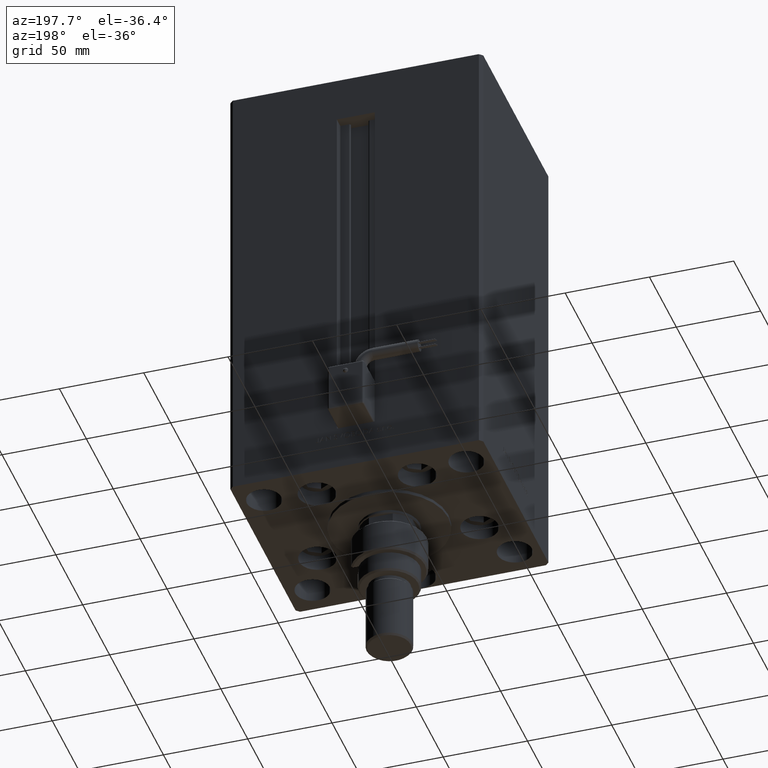
[diagram: clean part render]
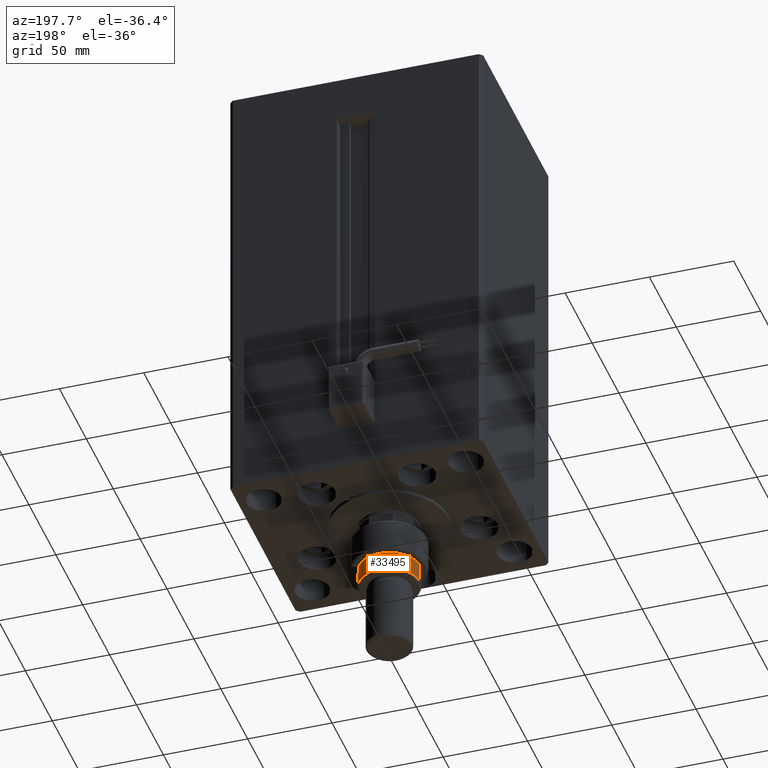
[diagram: same view with one face highlighted and labeled with its STEP entity id]
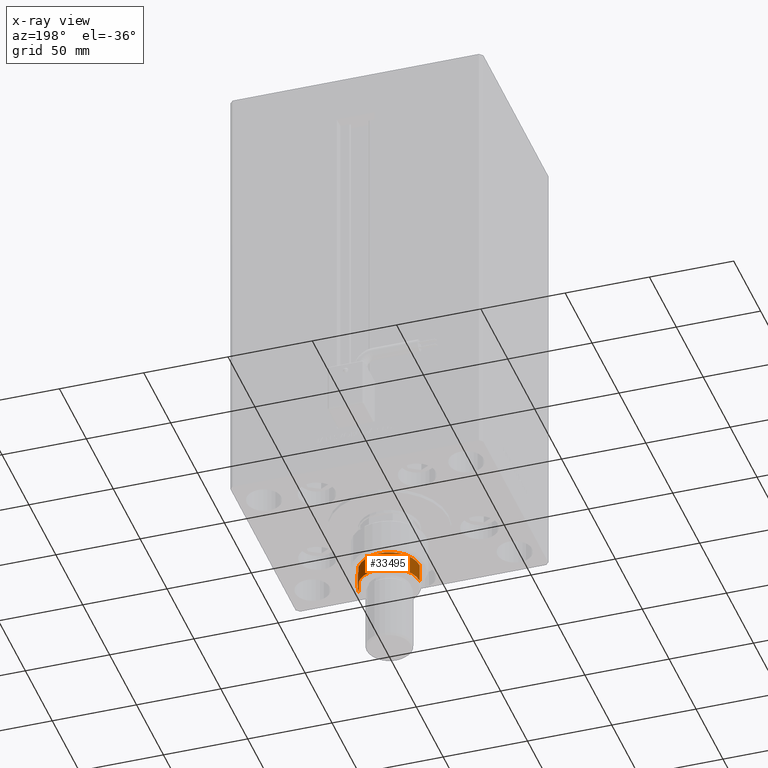
[diagram: x-ray of the same camera — body ghosted, the highlighted face saturated]
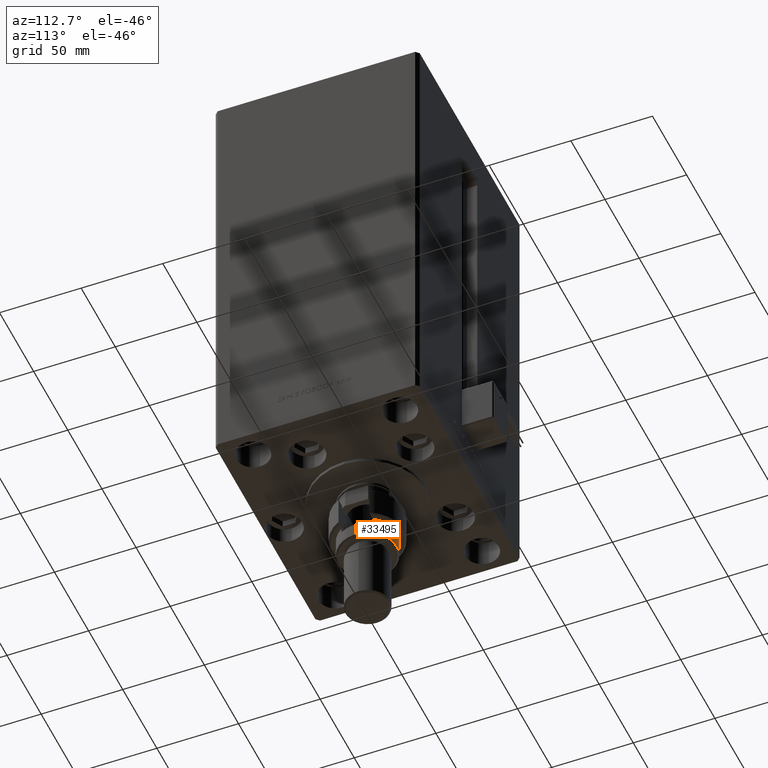
[diagram: same view with one face highlighted and labeled with its STEP entity id]
A machine part, auxiliary view. The second image highlights one B-rep face of the part: STEP entity #33495.
The next image is the same camera in x-ray: the body ghosted, the highlighted face saturated — about 0% of this face is hidden behind the body in this view.
A second angle (auxiliary view) of the same face is appended — the face is thin or edge-on in the first view.
In plain terms, the highlighted cylindrical surface (edge-blend (fillet) strip) has radius 18 mm, axis along (0, -0, 1).
Its self-contained STEP definition (entity closure, byte-faithful):
#139 = CARTESIAN_POINT ( 'NONE',  ( 0.000000000000000000, 0.000000000000000000, 30.99999999999999645 ) ) ;
#3191 = DIRECTION ( 'NONE',  ( -0.000000000000000000, -0.000000000000000000, -1.000000000000000000 ) ) ;
#4236 = VERTEX_POINT ( 'NONE', #10335 ) ;
#4238 = CARTESIAN_POINT ( 'NONE',  ( -18.00000000000000000, 0.000000000000000000, 23.00000000000000000 ) ) ;
#7295 = DIRECTION ( 'NONE',  ( 0.000000000000000000, 0.000000000000000000, 1.000000000000000000 ) ) ;
#8012 = CARTESIAN_POINT ( 'NONE',  ( -15.28888485142065434, 9.500000000000000000, 19.99999999999999645 ) ) ;
#8841 = AXIS2_PLACEMENT_3D ( 'NONE', #139, #45494, #20544 ) ;
#8931 = ORIENTED_EDGE ( 'NONE', *, *, #38828, .T. ) ;
#10335 = CARTESIAN_POINT ( 'NONE',  ( -15.28888485142065434, 9.500000000000000000, 23.00000000000000000 ) ) ;
#10512 = CARTESIAN_POINT ( 'NONE',  ( -15.28888485142065434, 9.500000000000000000, 32.00000000000000000 ) ) ;
#10897 = EDGE_CURVE ( 'NONE', #31676, #29994, #46839, .T. ) ;
#12817 = VECTOR ( 'NONE', #7295, 1000.000000000000000 ) ;
#14483 = CIRCLE ( 'NONE', #35924, 18.00000000000000000 ) ;
#14742 = CARTESIAN_POINT ( 'NONE',  ( 0.000000000000000000, 0.000000000000000000, 32.00000000000000000 ) ) ;
#16855 = VECTOR ( 'NONE', #25260, 1000.000000000000000 ) ;
#18022 = CARTESIAN_POINT ( 'NONE',  ( 0.000000000000000000, 0.000000000000000000, 23.00000000000000000 ) ) ;
#18755 = FACE_OUTER_BOUND ( 'NONE', #32003, .T. ) ;
#19351 = LINE ( 'NONE', #10512, #12817 ) ;
#20544 = DIRECTION ( 'NONE',  ( 1.000000000000000000, 0.000000000000000000, 0.000000000000000000 ) ) ;
#22015 = CARTESIAN_POINT ( 'NONE',  ( 18.00000000000000000, 2.204364238465235428E-15, 32.00000000000000000 ) ) ;
#22138 = DIRECTION ( 'NONE',  ( -0.000000000000000000, -0.000000000000000000, -1.000000000000000000 ) ) ;
#24142 = CIRCLE ( 'NONE', #36131, 18.00000000000000000 ) ;
#25260 = DIRECTION ( 'NONE',  ( -0.000000000000000000, -0.000000000000000000, -1.000000000000000000 ) ) ;
#25811 = EDGE_CURVE ( 'NONE', #36205, #40926, #45656, .T. ) ;
#25876 = ORIENTED_EDGE ( 'NONE', *, *, #25811, .T. ) ;
#26593 = AXIS2_PLACEMENT_3D ( 'NONE', #14742, #3191, #51781 ) ;
#27412 = ORIENTED_EDGE ( 'NONE', *, *, #45966, .F. ) ;
#29994 = VERTEX_POINT ( 'NONE', #4238 ) ;
#31538 = CARTESIAN_POINT ( 'NONE',  ( 18.00000000000000000, 2.204364238465235428E-15, 30.99999999999999645 ) ) ;
#31676 = VERTEX_POINT ( 'NONE', #46134 ) ;
#32003 = EDGE_LOOP ( 'NONE', ( #44626, #25876, #8931, #34937, #27412, #41070 ) ) ;
#32098 = CARTESIAN_POINT ( 'NONE',  ( 0.000000000000000000, 0.000000000000000000, 20.00000000000000000 ) ) ;
#32390 = EDGE_CURVE ( 'NONE', #32804, #4236, #19351, .T. ) ;
#32804 = VERTEX_POINT ( 'NONE', #8012 ) ;
#33495 = ADVANCED_FACE ( 'NONE', ( #18755 ), #35149, .T. ) ;
#34400 = DIRECTION ( 'NONE',  ( 0.000000000000000000, 0.000000000000000000, -1.000000000000000000 ) ) ;
#34937 = ORIENTED_EDGE ( 'NONE', *, *, #32390, .T. ) ;
#35149 = CYLINDRICAL_SURFACE ( 'NONE', #26593, 18.00000000000000000 ) ;
#35924 = AXIS2_PLACEMENT_3D ( 'NONE', #18022, #34400, #43252 ) ;
#36131 = AXIS2_PLACEMENT_3D ( 'NONE', #32098, #48484, #52765 ) ;
#36205 = VERTEX_POINT ( 'NONE', #31538 ) ;
#38828 = EDGE_CURVE ( 'NONE', #40926, #32804, #24142, .T. ) ;
#40926 = VERTEX_POINT ( 'NONE', #50139 ) ;
#41070 = ORIENTED_EDGE ( 'NONE', *, *, #10897, .F. ) ;
#41408 = CIRCLE ( 'NONE', #8841, 18.00000000000000000 ) ;
#42852 = EDGE_CURVE ( 'NONE', #31676, #36205, #41408, .T. ) ;
#43252 = DIRECTION ( 'NONE',  ( -1.000000000000000000, 0.000000000000000000, 0.000000000000000000 ) ) ;
#43345 = CARTESIAN_POINT ( 'NONE',  ( -18.00000000000000000, 0.000000000000000000, 32.00000000000000000 ) ) ;
#44626 = ORIENTED_EDGE ( 'NONE', *, *, #42852, .T. ) ;
#45277 = VECTOR ( 'NONE', #22138, 1000.000000000000000 ) ;
#45494 = DIRECTION ( 'NONE',  ( 0.000000000000000000, 0.000000000000000000, -1.000000000000000000 ) ) ;
#45656 = LINE ( 'NONE', #22015, #16855 ) ;
#45966 = EDGE_CURVE ( 'NONE', #29994, #4236, #14483, .T. ) ;
#46134 = CARTESIAN_POINT ( 'NONE',  ( -18.00000000000000000, 0.000000000000000000, 30.99999999999999645 ) ) ;
#46839 = LINE ( 'NONE', #43345, #45277 ) ;
#48484 = DIRECTION ( 'NONE',  ( 0.000000000000000000, 0.000000000000000000, 1.000000000000000000 ) ) ;
#50139 = CARTESIAN_POINT ( 'NONE',  ( 18.00000000000000000, 2.204364238465235428E-15, 20.00000000000000000 ) ) ;
#51781 = DIRECTION ( 'NONE',  ( -1.000000000000000000, 0.000000000000000000, 0.000000000000000000 ) ) ;
#52765 = DIRECTION ( 'NONE',  ( 1.000000000000000000, 0.000000000000000000, 0.000000000000000000 ) ) ;